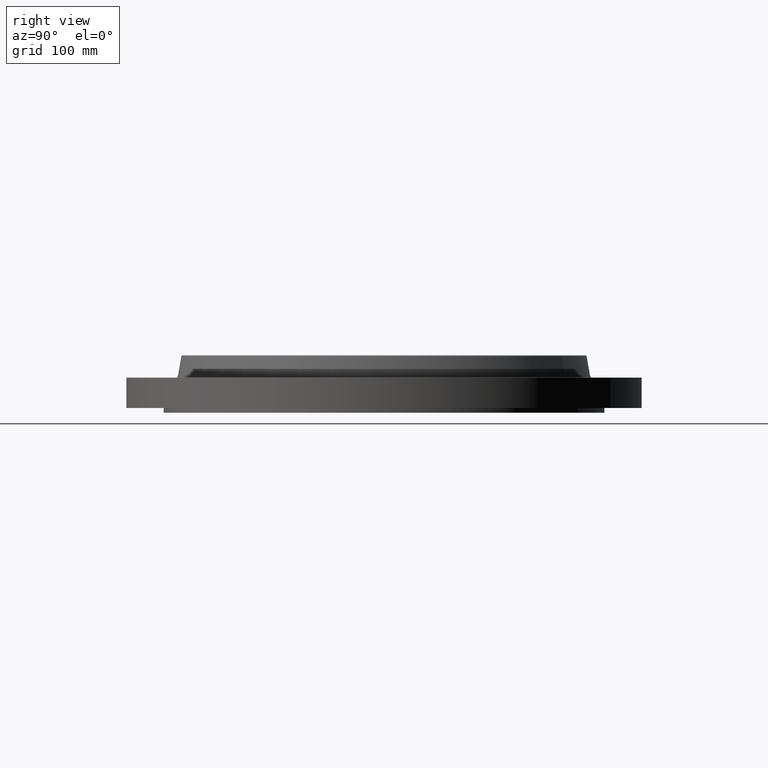
[diagram: clean part render]
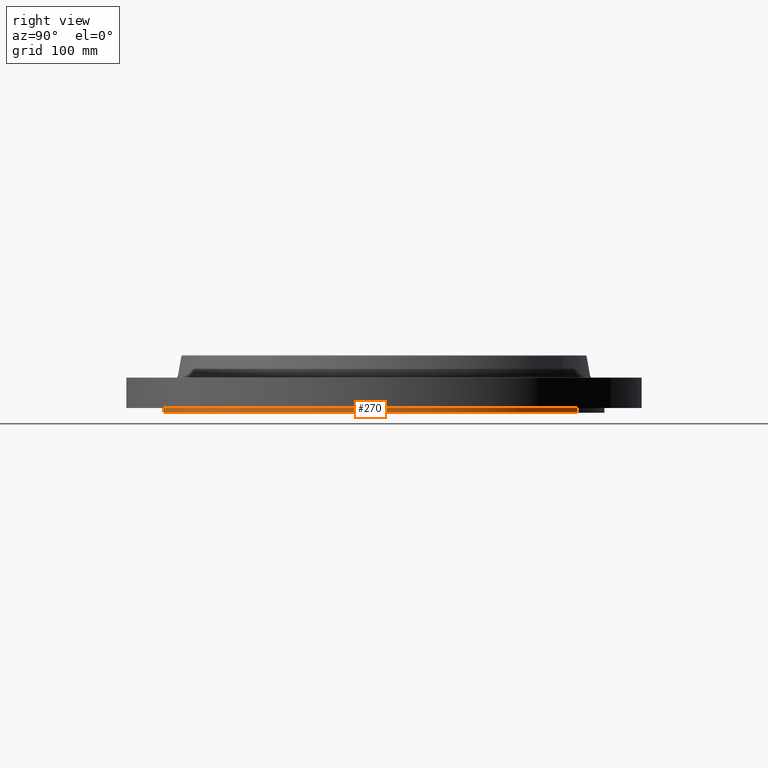
[diagram: same view with one face highlighted and labeled with its STEP entity id]
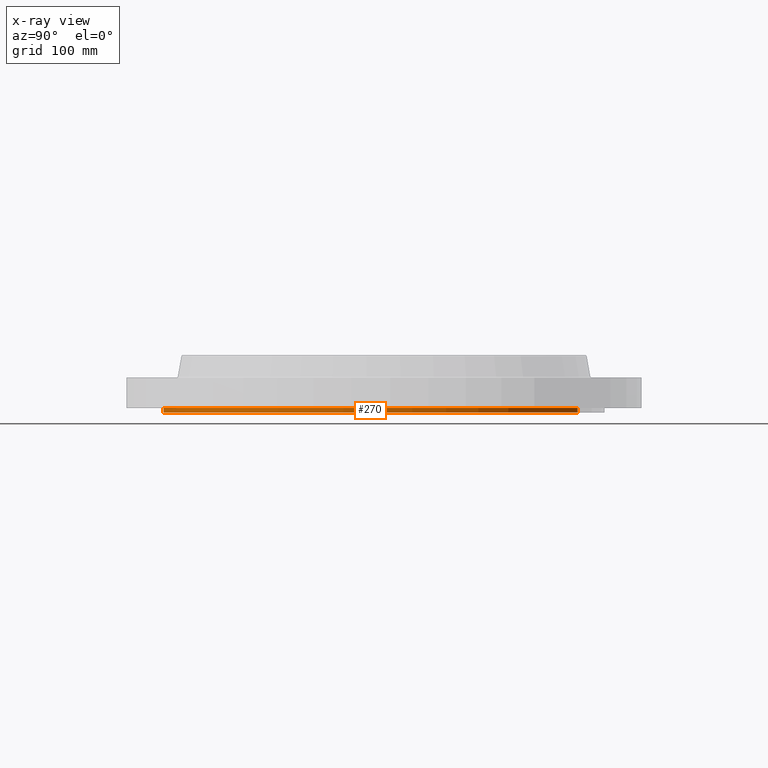
[diagram: x-ray of the same camera — body ghosted, the highlighted face saturated]
A machine part, right view. The second image highlights one B-rep face of the part: STEP entity #270.
The next image is the same camera in x-ray: the body ghosted, the highlighted face saturated — about 0% of this face is hidden behind the body in this view.
In plain terms, the highlighted cylindrical surface (partial cylindrical patch) has radius 298.45 mm, axis along (0, 0, -1).
Its self-contained STEP definition (entity closure, byte-faithful):
#202=AXIS2_PLACEMENT_3D('Circle Axis2P3D',#200,#201,$) ;
#231=AXIS2_PLACEMENT_3D('Cylinder Axis2P3D',#228,#229,#230) ;
#261=AXIS2_PLACEMENT_3D('Circle Axis2P3D',#259,#260,$) ;
#195=CARTESIAN_POINT('Vertex',(-5.63325007862,-10.3115951023,-0.250000000001)) ;
#197=CARTESIAN_POINT('Vertex',(5.63325007862,10.3115951023,-0.250000000001)) ;
#200=CARTESIAN_POINT('Axis2P3D Location',(0.,0.,-0.250000000001)) ;
#228=CARTESIAN_POINT('Axis2P3D Location',(0.,0.,1.28000000001)) ;
#233=CARTESIAN_POINT('Line Origine',(-5.63325007862,-10.3115951023,-0.125)) ;
#237=CARTESIAN_POINT('Vertex',(-5.63325007862,-10.3115951023,1.39870617276E-015)) ;
#244=CARTESIAN_POINT('Vertex',(5.63325007862,10.3115951023,1.39870617276E-015)) ;
#247=CARTESIAN_POINT('Line Origine',(5.63325007862,10.3115951023,-0.125)) ;
#259=CARTESIAN_POINT('Axis2P3D Location',(0.,0.,1.39870617276E-015)) ;
#201=DIRECTION('Axis2P3D Direction',(0.,0.,-0.0393700787402)) ;
#229=DIRECTION('Axis2P3D Direction',(0.,0.,-0.0393700787402)) ;
#230=DIRECTION('Axis2P3D XDirection',(0.0188750212049,0.0345504945626,0.)) ;
#234=DIRECTION('Vector Direction',(0.,0.,-0.0393700787402)) ;
#248=DIRECTION('Vector Direction',(0.,0.,-0.0393700787402)) ;
#260=DIRECTION('Axis2P3D Direction',(0.,0.,-0.0393700787402)) ;
#235=VECTOR('Line Direction',#234,0.0393700787402) ;
#249=VECTOR('Line Direction',#248,0.0393700787402) ;
#265=ORIENTED_EDGE('',*,*,#204,.F.) ;
#266=ORIENTED_EDGE('',*,*,#251,.T.) ;
#267=ORIENTED_EDGE('',*,*,#263,.T.) ;
#268=ORIENTED_EDGE('',*,*,#239,.F.) ;
#270=ADVANCED_FACE('PartBody',(#269),#232,.T.) ;
#203=CIRCLE('generated circle',#202,11.75) ;
#262=CIRCLE('generated circle',#261,11.75) ;
#232=CYLINDRICAL_SURFACE('generated cylinder',#231,11.75) ;
#204=EDGE_CURVE('',#198,#196,#203,.T.) ;
#239=EDGE_CURVE('',#196,#238,#236,.F.) ;
#251=EDGE_CURVE('',#198,#245,#250,.F.) ;
#263=EDGE_CURVE('',#245,#238,#262,.T.) ;
#264=EDGE_LOOP('',(#265,#266,#267,#268)) ;
#269=FACE_OUTER_BOUND('',#264,.T.) ;
#236=LINE('Line',#233,#235) ;
#250=LINE('Line',#247,#249) ;
#196=VERTEX_POINT('',#195) ;
#198=VERTEX_POINT('',#197) ;
#238=VERTEX_POINT('',#237) ;
#245=VERTEX_POINT('',#244) ;